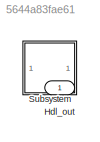
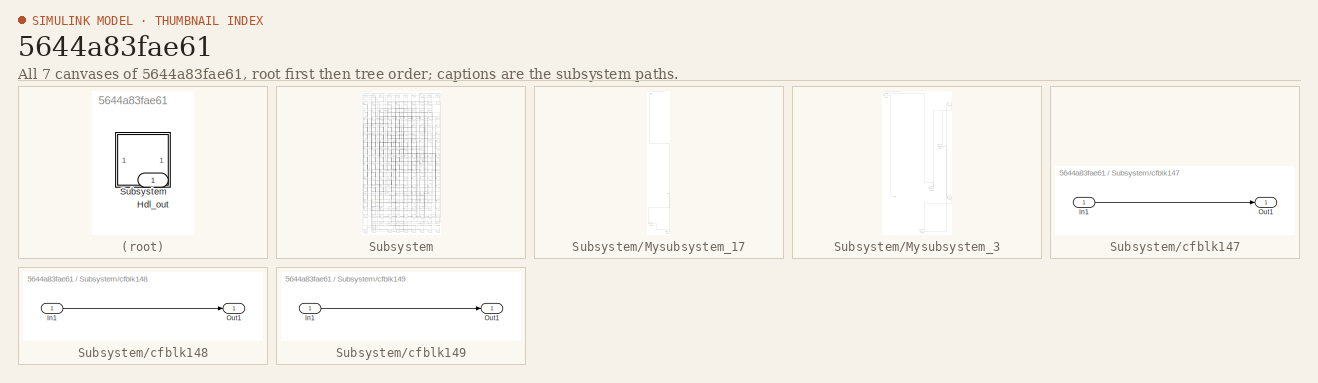
[diagram: thumbnail index - all 7 canvases of the model, root first then tree order]
MODEL slx_5644a83fae61
KIND model
CONFIG AbsTol = auto
CONFIG EnableMultiTasking = off
CONFIG FixedStep = auto
CONFIG MaxStep = auto
CONFIG MinStep = auto
CONFIG RelTol = 1e-3
CONFIG SampleTimeConstraint = Unconstrained
CONFIG SolverName = VariableStepAuto
CONFIG StartTime = 0.0
CONFIG StopTime = 10.0
BLOCK [Outport] Hdl_out
  OutDataTypeStr = uint8
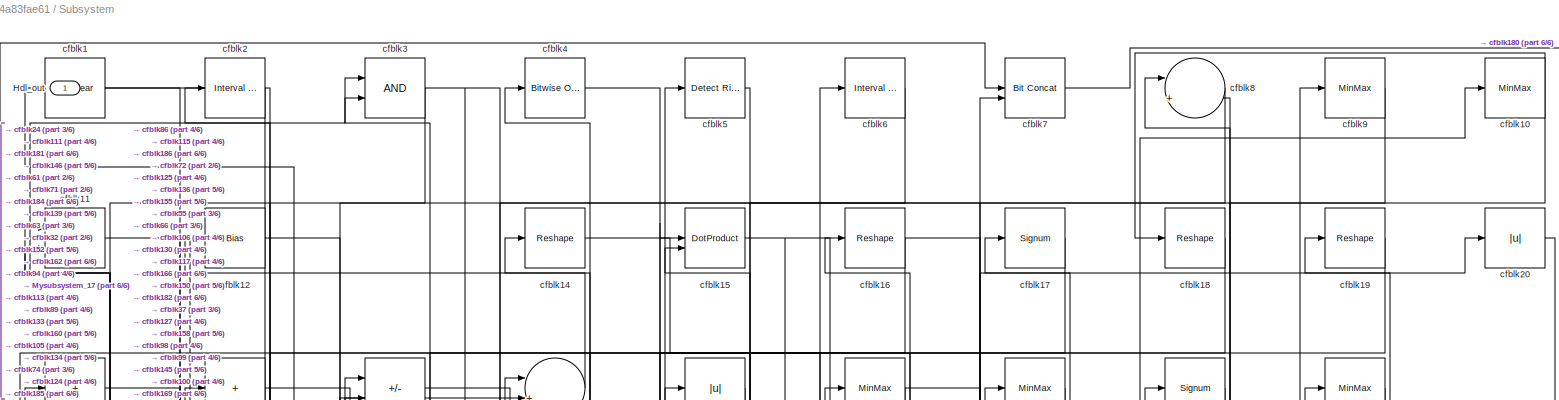
[diagram: Subsystem - part 1/6, full width, top band]
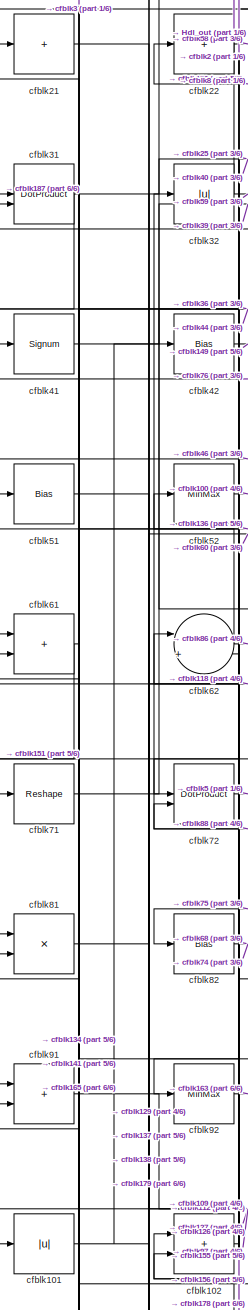
[diagram: Subsystem - part 2/6, middle left region]
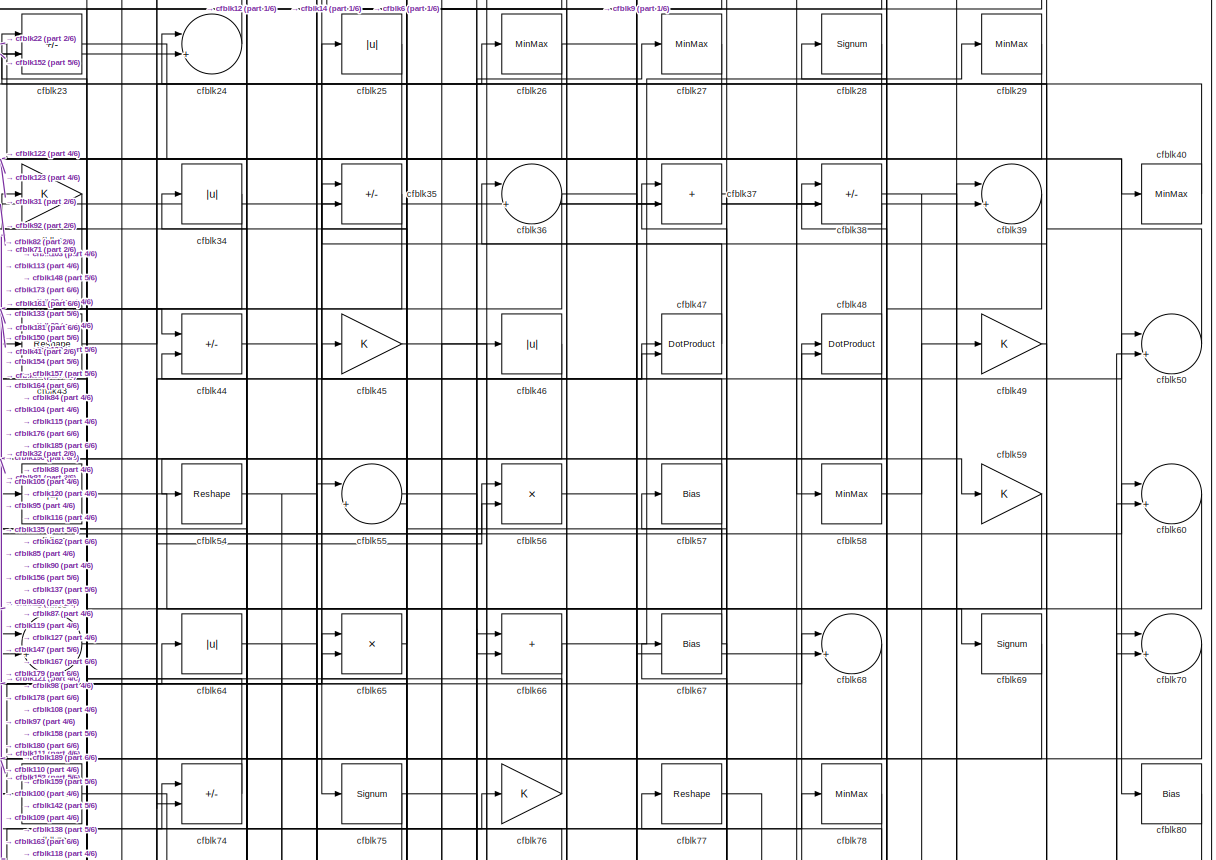
[diagram: Subsystem - part 3/6, full width, top band]
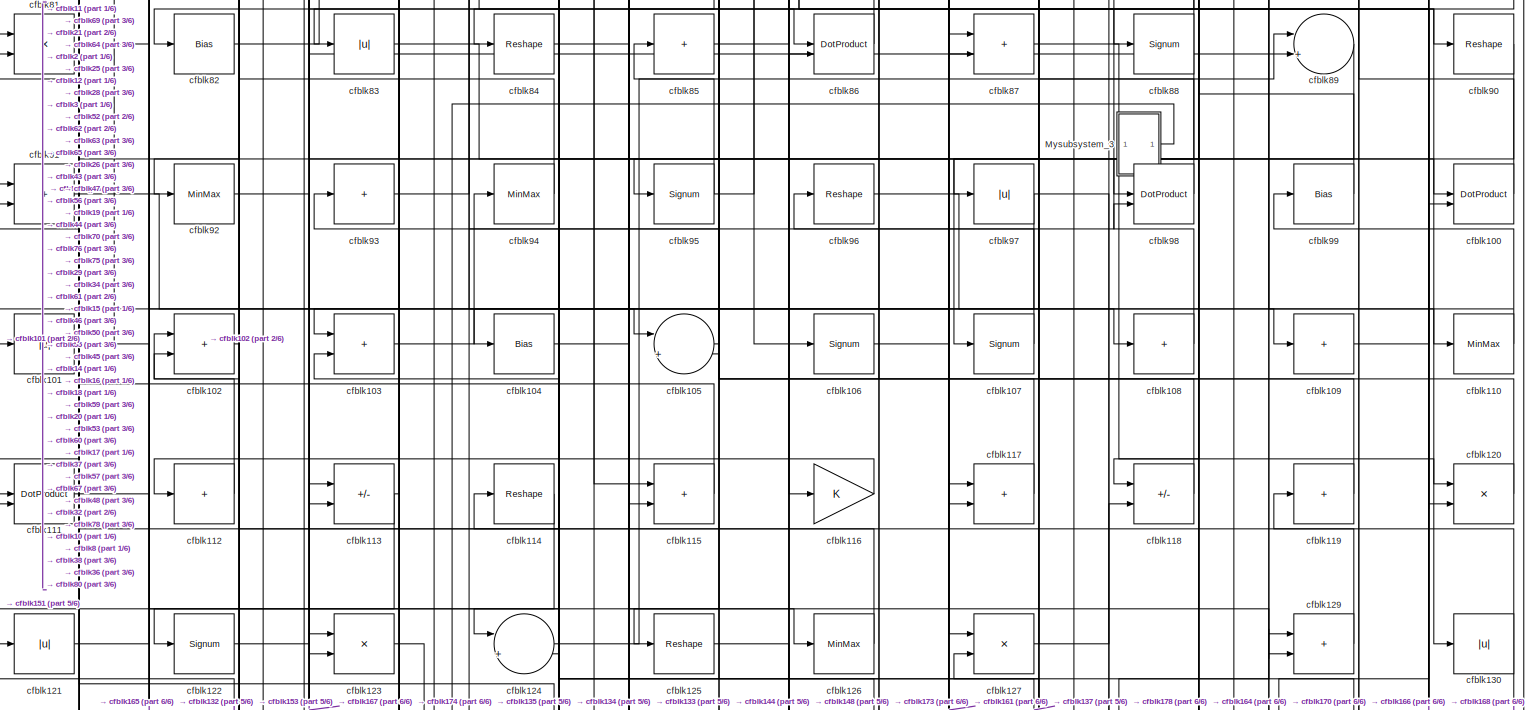
[diagram: Subsystem - part 4/6, full width, middle band]
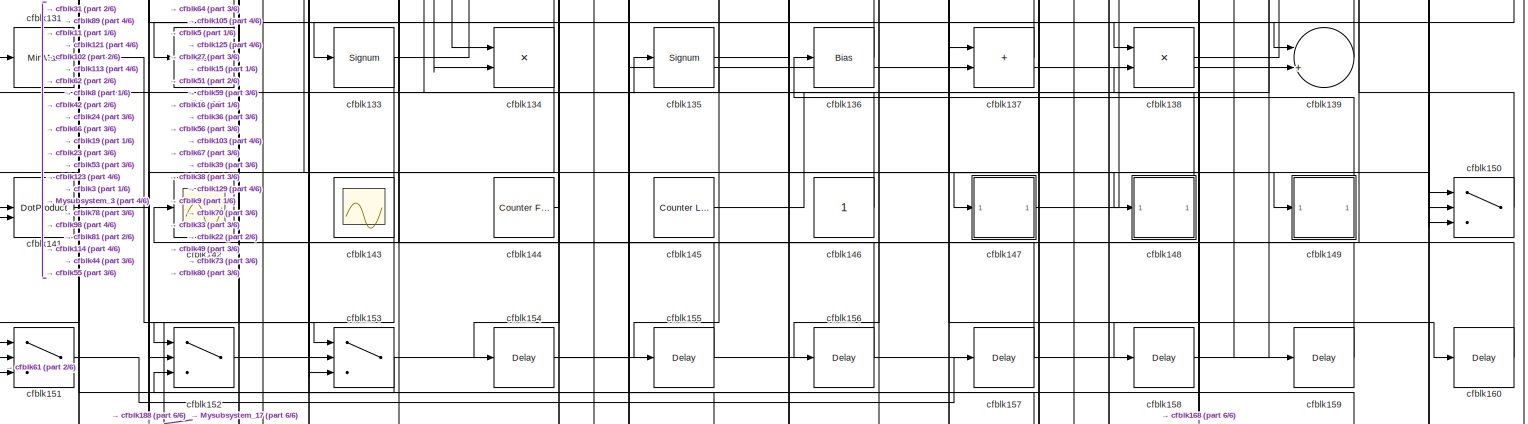
[diagram: Subsystem - part 5/6, full width, bottom band]
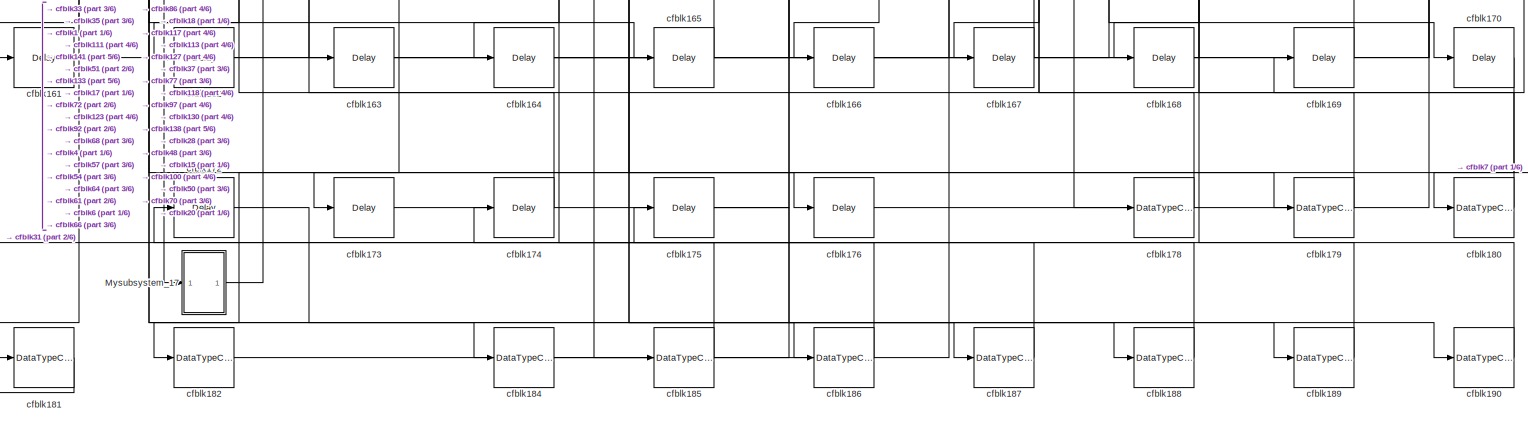
[diagram: Subsystem - part 6/6, full width, bottom band]
BLOCK [SubSystem] Subsystem
BLOCK [Outport] Subsystem/Hdl_out
  OutDataTypeStr = uint8
BLOCK [SubSystem] Subsystem/Mysubsystem_17
  RTWFcnName = Mysubsystem_17
  RTWFcnNameOpts = User specified
  RTWFileNameOpts = Use function name
  RTWSystemCode = Reusable function
  TreatAsAtomicUnit = on
BLOCK [Inport] Subsystem/Mysubsystem_17/In1
BLOCK [Outport] Subsystem/Mysubsystem_17/Out1
BLOCK [Delay] Subsystem/Mysubsystem_17/cfblk171
  InputPortMap = u0
  SampleTime = 1
BLOCK [DataTypeConversion] Subsystem/Mysubsystem_17/cfblk183
  OutDataTypeStr = boolean
  RndMeth = Floor
  SaturateOnIntegerOverflow = off
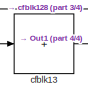
[diagram: Subsystem/Mysubsystem_3 - part 1/4, top left region]
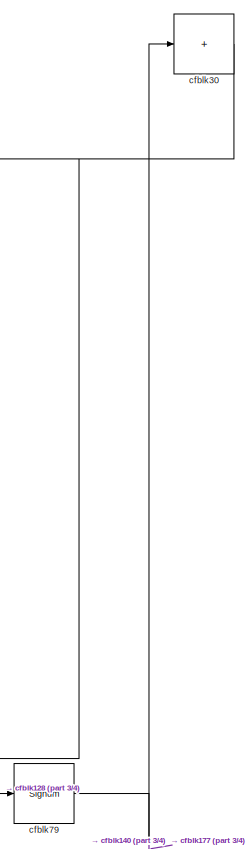
[diagram: Subsystem/Mysubsystem_3 - part 2/4, top right region]
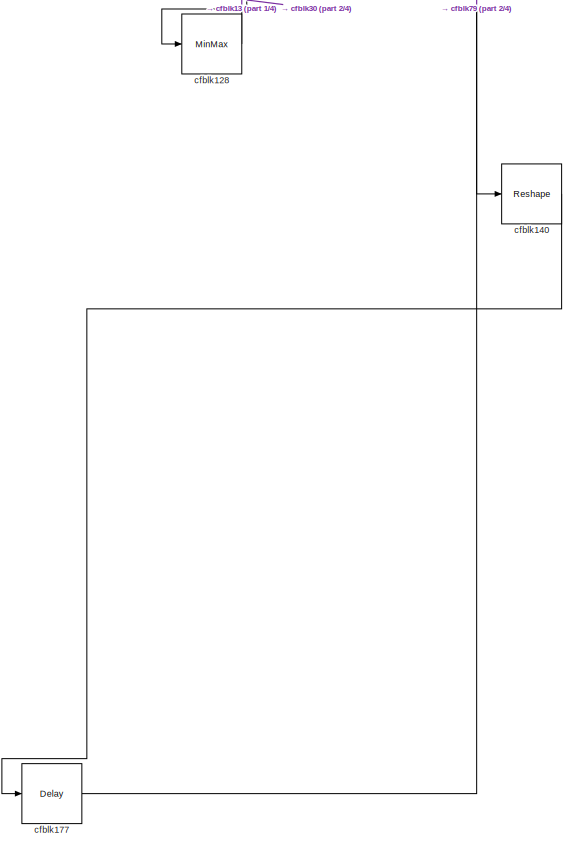
[diagram: Subsystem/Mysubsystem_3 - part 3/4, bottom right region]
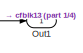
[diagram: Subsystem/Mysubsystem_3 - part 4/4, bottom left region]
BLOCK [SubSystem] Subsystem/Mysubsystem_3
  RTWFcnName = Mysubsystem_3
  RTWFcnNameOpts = User specified
  RTWFileNameOpts = Use function name
  RTWSystemCode = Reusable function
  TreatAsAtomicUnit = on
BLOCK [Outport] Subsystem/Mysubsystem_3/Out1
BLOCK [MinMax] Subsystem/Mysubsystem_3/cfblk128
BLOCK [Sum] Subsystem/Mysubsystem_3/cfblk13
  IconShape = rectangular
  Inputs = +
BLOCK [Reshape] Subsystem/Mysubsystem_3/cfblk140
BLOCK [Delay] Subsystem/Mysubsystem_3/cfblk177
  InputPortMap = u0
  SampleTime = 1
BLOCK [Sum] Subsystem/Mysubsystem_3/cfblk30
  IconShape = rectangular
  Inputs = +
BLOCK [Signum] Subsystem/Mysubsystem_3/cfblk79
BLOCK [Reference] Subsystem/cfblk1  REF=simulink/Logic and Bit
Operations/Bit Clear
  LibrarySourceBlock = hdlsllib/Logic and Bit\nOperations/Bit Clear
  SourceBlock = simulink/Logic and Bit\nOperations/Bit Clear
  SourceType = Bit Clear
BLOCK [MinMax] Subsystem/cfblk10
  OutDataTypeStr = uint8
BLOCK [DotProduct] Subsystem/cfblk100
  OutDataTypeStr = uint8
BLOCK [Abs] Subsystem/cfblk101
  OutDataTypeStr = uint8
  SaturateOnIntegerOverflow = off
BLOCK [Sum] Subsystem/cfblk102
  IconShape = rectangular
  OutDataTypeStr = uint8
BLOCK [Sum] Subsystem/cfblk103
  IconShape = rectangular
  OutDataTypeStr = uint8
BLOCK [Bias] Subsystem/cfblk104
  Bias = 0.0
  SaturateOnIntegerOverflow = off
BLOCK [Sum] Subsystem/cfblk105
  Inputs = |++
  OutDataTypeStr = uint8
BLOCK [Signum] Subsystem/cfblk106
BLOCK [Signum] Subsystem/cfblk107
BLOCK [Sum] Subsystem/cfblk108
  IconShape = rectangular
  Inputs = +
  OutDataTypeStr = uint8
BLOCK [Sum] Subsystem/cfblk109
  IconShape = rectangular
  Inputs = +
  OutDataTypeStr = uint8
BLOCK [Sum] Subsystem/cfblk11
  IconShape = rectangular
  OutDataTypeStr = uint8
BLOCK [MinMax] Subsystem/cfblk110
  OutDataTypeStr = uint8
BLOCK [DotProduct] Subsystem/cfblk111
  OutDataTypeStr = uint8
BLOCK [Sum] Subsystem/cfblk112
  IconShape = rectangular
  Inputs = +
  OutDataTypeStr = uint8
BLOCK [Sum] Subsystem/cfblk113
  IconShape = rectangular
  Inputs = +-
  OutDataTypeStr = uint8
BLOCK [Reshape] Subsystem/cfblk114
BLOCK [Sum] Subsystem/cfblk115
  IconShape = rectangular
  OutDataTypeStr = uint8
BLOCK [Gain] Subsystem/cfblk116
  OutDataTypeStr = uint8
BLOCK [Sum] Subsystem/cfblk117
  IconShape = rectangular
  OutDataTypeStr = uint8
BLOCK [Sum] Subsystem/cfblk118
  IconShape = rectangular
  Inputs = +-
  OutDataTypeStr = uint8
BLOCK [Sum] Subsystem/cfblk119
  IconShape = rectangular
  Inputs = +
  OutDataTypeStr = uint8
BLOCK [Bias] Subsystem/cfblk12
  Bias = 0.0
  SaturateOnIntegerOverflow = off
BLOCK [Product] Subsystem/cfblk120
  Inputs = */
  OutDataTypeStr = uint8
  RndMeth = Zero
  SaturateOnIntegerOverflow = on
BLOCK [Abs] Subsystem/cfblk121
  OutDataTypeStr = uint8
  SaturateOnIntegerOverflow = off
BLOCK [Signum] Subsystem/cfblk122
BLOCK [Product] Subsystem/cfblk123
  Inputs = */
  OutDataTypeStr = uint8
  RndMeth = Zero
  SaturateOnIntegerOverflow = on
BLOCK [Sum] Subsystem/cfblk124
  Inputs = |++
  OutDataTypeStr = uint8
BLOCK [Reshape] Subsystem/cfblk125
BLOCK [MinMax] Subsystem/cfblk126
  OutDataTypeStr = uint8
BLOCK [Product] Subsystem/cfblk127
  Inputs = */
  OutDataTypeStr = uint8
  RndMeth = Zero
  SaturateOnIntegerOverflow = on
BLOCK [Sum] Subsystem/cfblk129
  IconShape = rectangular
  OutDataTypeStr = uint8
BLOCK [Abs] Subsystem/cfblk130
  OutDataTypeStr = uint8
  SaturateOnIntegerOverflow = off
BLOCK [MinMax] Subsystem/cfblk131
  OutDataTypeStr = uint8
BLOCK [Bias] Subsystem/cfblk132
  Bias = 0.0
  SaturateOnIntegerOverflow = off
BLOCK [Signum] Subsystem/cfblk133
BLOCK [Product] Subsystem/cfblk134
  Inputs = */
  OutDataTypeStr = uint8
  RndMeth = Zero
  SaturateOnIntegerOverflow = on
BLOCK [Signum] Subsystem/cfblk135
BLOCK [Bias] Subsystem/cfblk136
  Bias = 0.0
  SaturateOnIntegerOverflow = off
BLOCK [Sum] Subsystem/cfblk137
  IconShape = rectangular
  OutDataTypeStr = uint8
BLOCK [Product] Subsystem/cfblk138
  Inputs = */
  OutDataTypeStr = uint8
  RndMeth = Zero
  SaturateOnIntegerOverflow = on
BLOCK [Sum] Subsystem/cfblk139
  Inputs = |++
  OutDataTypeStr = uint8
BLOCK [Reshape] Subsystem/cfblk14
BLOCK [DotProduct] Subsystem/cfblk141
  OutDataTypeStr = uint8
BLOCK [Scope] Subsystem/cfblk142
  Floating = off
  NumInputPorts = 1
  ScopeSpecificationString = Simulink.scopes.TimeScopeBlockCfg('CurrentConfiguration', extmgr.ConfigurationSet(extmgr.Configuration('Core','General UI',true),extmgr.Configuration('Core','Source UI',true),extmgr.Configuration('Sources','WiredSimulink',true,'DataLoggingVariableName','ScopeData1','DataLoggingSaveFormat','Array','DataLoggingLimitDataPoints',true,'DataLoggingDecimation','1'),extmgr.Configuration('Visuals','Time Do...<+868ch>
BLOCK [Scope] Subsystem/cfblk143
  Floating = on
  NumInputPorts = 1
  ScopeSpecificationString = Simulink.scopes.TimeScopeBlockCfg('CurrentConfiguration', extmgr.ConfigurationSet(extmgr.Configuration('Core','General UI',true,'FigureColor',[0.156862745098039 0.156862745098039 0.156862745098039]),extmgr.Configuration('Core','Source UI',true),extmgr.Configuration('Sources','WiredSimulink',true,'DataLoggingSaveFormat','StructureWithTime','DataLoggingLimitDataPoints',true,'DataLoggingDecimation','...<+2674ch>
BLOCK [Reference] Subsystem/cfblk144  REF=hdlsllib/Sources/Counter
Free-Running
  SourceBlock = hdlsllib/Sources/Counter\nFree-Running
  SourceType = Counter Free-Running
BLOCK [Reference] Subsystem/cfblk145  REF=hdlsllib/Sources/Counter
Limited
  SourceBlock = hdlsllib/Sources/Counter\nLimited
  SourceType = Counter Limited
BLOCK [Constant] Subsystem/cfblk146
  OutDataTypeStr = uint8
  SampleTime = -1
BLOCK [SubSystem] Subsystem/cfblk147
  LibrarySourceBlock = hdlsllib/Ports &\nSubsystems/Subsystem
BLOCK [Inport] Subsystem/cfblk147/In1
BLOCK [Outport] Subsystem/cfblk147/Out1
BLOCK [SubSystem] Subsystem/cfblk148
  LibrarySourceBlock = hdlsllib/Ports &\nSubsystems/Subsystem
BLOCK [Inport] Subsystem/cfblk148/In1
BLOCK [Outport] Subsystem/cfblk148/Out1
BLOCK [SubSystem] Subsystem/cfblk149
  LibrarySourceBlock = hdlsllib/Ports &\nSubsystems/Subsystem
BLOCK [Inport] Subsystem/cfblk149/In1
BLOCK [Outport] Subsystem/cfblk149/Out1
BLOCK [DotProduct] Subsystem/cfblk15
  OutDataTypeStr = uint8
BLOCK [Switch] Subsystem/cfblk150
  InputSameDT = off
  OutDataTypeStr = uint8
  SaturateOnIntegerOverflow = off
BLOCK [Switch] Subsystem/cfblk151
  InputSameDT = off
  OutDataTypeStr = uint8
  SaturateOnIntegerOverflow = off
BLOCK [Switch] Subsystem/cfblk152
  InputSameDT = off
  OutDataTypeStr = uint8
  SaturateOnIntegerOverflow = off
BLOCK [Switch] Subsystem/cfblk153
  InputSameDT = off
  OutDataTypeStr = uint8
  SaturateOnIntegerOverflow = off
BLOCK [Delay] Subsystem/cfblk154
  InputPortMap = u0
  SampleTime = 1
BLOCK [Delay] Subsystem/cfblk155
  InputPortMap = u0
  SampleTime = 1
BLOCK [Delay] Subsystem/cfblk156
  InputPortMap = u0
  SampleTime = 1
BLOCK [Delay] Subsystem/cfblk157
  InputPortMap = u0
  SampleTime = 1
BLOCK [Delay] Subsystem/cfblk158
  InputPortMap = u0
  SampleTime = 1
BLOCK [Delay] Subsystem/cfblk159
  InputPortMap = u0
  SampleTime = 1
BLOCK [Reshape] Subsystem/cfblk16
BLOCK [Delay] Subsystem/cfblk160
  InputPortMap = u0
  SampleTime = 1
BLOCK [Delay] Subsystem/cfblk161
  InputPortMap = u0
  SampleTime = 1
BLOCK [Delay] Subsystem/cfblk162
  InputPortMap = u0
  SampleTime = 1
BLOCK [Delay] Subsystem/cfblk163
  InputPortMap = u0
  SampleTime = 1
BLOCK [Delay] Subsystem/cfblk164
  InputPortMap = u0
  SampleTime = 1
BLOCK [Delay] Subsystem/cfblk165
  InputPortMap = u0
  SampleTime = 1
BLOCK [Delay] Subsystem/cfblk166
  InputPortMap = u0
  SampleTime = 1
BLOCK [Delay] Subsystem/cfblk167
  InputPortMap = u0
  SampleTime = 1
BLOCK [Delay] Subsystem/cfblk168
  InputPortMap = u0
  SampleTime = 1
BLOCK [Delay] Subsystem/cfblk169
  InputPortMap = u0
  SampleTime = 1
BLOCK [Signum] Subsystem/cfblk17
BLOCK [Delay] Subsystem/cfblk170
  InputPortMap = u0
  SampleTime = 1
BLOCK [Delay] Subsystem/cfblk172
  InputPortMap = u0
  SampleTime = 1
BLOCK [Delay] Subsystem/cfblk173
  InputPortMap = u0
  SampleTime = 1
BLOCK [Delay] Subsystem/cfblk174
  InputPortMap = u0
  SampleTime = 1
BLOCK [Delay] Subsystem/cfblk175
  InputPortMap = u0
  SampleTime = 1
BLOCK [Delay] Subsystem/cfblk176
  InputPortMap = u0
  SampleTime = 1
BLOCK [DataTypeConversion] Subsystem/cfblk178
  OutDataTypeStr = uint8
  RndMeth = Floor
  SaturateOnIntegerOverflow = off
BLOCK [DataTypeConversion] Subsystem/cfblk179
  OutDataTypeStr = uint8
  RndMeth = Floor
  SaturateOnIntegerOverflow = off
BLOCK [Reshape] Subsystem/cfblk18
BLOCK [DataTypeConversion] Subsystem/cfblk180
  OutDataTypeStr = uint8
  RndMeth = Floor
  SaturateOnIntegerOverflow = off
BLOCK [DataTypeConversion] Subsystem/cfblk181
  OutDataTypeStr = uint8
  RndMeth = Floor
  SaturateOnIntegerOverflow = off
BLOCK [DataTypeConversion] Subsystem/cfblk182
  OutDataTypeStr = uint8
  RndMeth = Floor
  SaturateOnIntegerOverflow = off
BLOCK [DataTypeConversion] Subsystem/cfblk184
  OutDataTypeStr = uint8
  RndMeth = Floor
  SaturateOnIntegerOverflow = off
BLOCK [DataTypeConversion] Subsystem/cfblk185
  OutDataTypeStr = uint8
  RndMeth = Floor
  SaturateOnIntegerOverflow = off
BLOCK [DataTypeConversion] Subsystem/cfblk186
  OutDataTypeStr = uint8
  RndMeth = Floor
  SaturateOnIntegerOverflow = off
BLOCK [DataTypeConversion] Subsystem/cfblk187
  OutDataTypeStr = uint8
  RndMeth = Floor
  SaturateOnIntegerOverflow = off
BLOCK [DataTypeConversion] Subsystem/cfblk188
  OutDataTypeStr = uint8
  RndMeth = Floor
  SaturateOnIntegerOverflow = off
BLOCK [DataTypeConversion] Subsystem/cfblk189
  OutDataTypeStr = uint8
  RndMeth = Floor
  SaturateOnIntegerOverflow = off
BLOCK [Reshape] Subsystem/cfblk19
BLOCK [DataTypeConversion] Subsystem/cfblk190
  OutDataTypeStr = uint8
  RndMeth = Floor
  SaturateOnIntegerOverflow = off
BLOCK [Reference] Subsystem/cfblk2  REF=hdlsllib/Logic and Bit
Operations/Interval Test
  SourceBlock = hdlsllib/Logic and Bit\nOperations/Interval Test
  SourceType = Interval Test
BLOCK [Abs] Subsystem/cfblk20
  OutDataTypeStr = uint8
  SaturateOnIntegerOverflow = off
BLOCK [Sum] Subsystem/cfblk21
  IconShape = rectangular
  Inputs = +
  OutDataTypeStr = uint8
BLOCK [Sum] Subsystem/cfblk22
  IconShape = rectangular
  Inputs = +
  OutDataTypeStr = uint8
BLOCK [Sum] Subsystem/cfblk23
  IconShape = rectangular
  Inputs = +-
  OutDataTypeStr = uint8
BLOCK [Sum] Subsystem/cfblk24
  Inputs = |++
  OutDataTypeStr = uint8
BLOCK [Abs] Subsystem/cfblk25
  OutDataTypeStr = uint8
  SaturateOnIntegerOverflow = off
BLOCK [MinMax] Subsystem/cfblk26
  OutDataTypeStr = uint8
BLOCK [MinMax] Subsystem/cfblk27
  OutDataTypeStr = uint8
BLOCK [Signum] Subsystem/cfblk28
BLOCK [MinMax] Subsystem/cfblk29
  OutDataTypeStr = uint8
BLOCK [Logic] Subsystem/cfblk3
  AllPortsSameDT = off
  OutDataTypeStr = boolean
BLOCK [DotProduct] Subsystem/cfblk31
  OutDataTypeStr = uint8
BLOCK [Abs] Subsystem/cfblk32
  OutDataTypeStr = uint8
  SaturateOnIntegerOverflow = off
BLOCK [Gain] Subsystem/cfblk33
  OutDataTypeStr = uint8
BLOCK [Abs] Subsystem/cfblk34
  OutDataTypeStr = uint8
  SaturateOnIntegerOverflow = off
BLOCK [Sum] Subsystem/cfblk35
  IconShape = rectangular
  Inputs = +-
  OutDataTypeStr = uint8
BLOCK [Sum] Subsystem/cfblk36
  Inputs = |++
  OutDataTypeStr = uint8
BLOCK [Sum] Subsystem/cfblk37
  IconShape = rectangular
  OutDataTypeStr = uint8
BLOCK [Sum] Subsystem/cfblk38
  IconShape = rectangular
  Inputs = +-
  OutDataTypeStr = uint8
BLOCK [Sum] Subsystem/cfblk39
  Inputs = |++
  OutDataTypeStr = uint8
BLOCK [Reference] Subsystem/cfblk4  REF=simulink/Logic and Bit
Operations/Bitwise
Operator
  LibrarySourceBlock = hdlsllib/Logic and Bit\nOperations/Bitwise\nOperator
  SourceBlock = simulink/Logic and Bit\nOperations/Bitwise\nOperator
  SourceType = Bitwise Operator
BLOCK [MinMax] Subsystem/cfblk40
  OutDataTypeStr = uint8
BLOCK [Signum] Subsystem/cfblk41
BLOCK [Bias] Subsystem/cfblk42
  Bias = 0.0
  SaturateOnIntegerOverflow = off
BLOCK [Reshape] Subsystem/cfblk43
BLOCK [Sum] Subsystem/cfblk44
  IconShape = rectangular
  Inputs = +-
  OutDataTypeStr = uint8
BLOCK [Gain] Subsystem/cfblk45
  OutDataTypeStr = uint8
BLOCK [Abs] Subsystem/cfblk46
  OutDataTypeStr = uint8
  SaturateOnIntegerOverflow = off
BLOCK [DotProduct] Subsystem/cfblk47
  OutDataTypeStr = uint8
BLOCK [DotProduct] Subsystem/cfblk48
  OutDataTypeStr = uint8
BLOCK [Gain] Subsystem/cfblk49
  OutDataTypeStr = uint8
BLOCK [Reference] Subsystem/cfblk5  REF=hdlsllib/Logic and Bit
Operations/Detect Rise
Nonnegative
  SourceBlock = hdlsllib/Logic and Bit\nOperations/Detect Rise\nNonnegative
  SourceType = Detect Rise Nonnegative
BLOCK [Sum] Subsystem/cfblk50
  Inputs = |++
  OutDataTypeStr = uint8
BLOCK [Bias] Subsystem/cfblk51
  Bias = 0.0
  SaturateOnIntegerOverflow = off
BLOCK [MinMax] Subsystem/cfblk52
  OutDataTypeStr = uint8
BLOCK [Abs] Subsystem/cfblk53
  OutDataTypeStr = uint8
  SaturateOnIntegerOverflow = off
BLOCK [Reshape] Subsystem/cfblk54
BLOCK [Sum] Subsystem/cfblk55
  Inputs = |++
  OutDataTypeStr = uint8
BLOCK [Product] Subsystem/cfblk56
  Inputs = */
  OutDataTypeStr = uint8
  RndMeth = Zero
  SaturateOnIntegerOverflow = on
BLOCK [Bias] Subsystem/cfblk57
  Bias = 0.0
  SaturateOnIntegerOverflow = off
BLOCK [MinMax] Subsystem/cfblk58
  OutDataTypeStr = uint8
BLOCK [Gain] Subsystem/cfblk59
  OutDataTypeStr = uint8
BLOCK [Reference] Subsystem/cfblk6  REF=hdlsllib/Logic and Bit
Operations/Interval Test
  SourceBlock = hdlsllib/Logic and Bit\nOperations/Interval Test
  SourceType = Interval Test
BLOCK [Sum] Subsystem/cfblk60
  Inputs = |++
  OutDataTypeStr = uint8
BLOCK [Sum] Subsystem/cfblk61
  IconShape = rectangular
  OutDataTypeStr = uint8
BLOCK [Sum] Subsystem/cfblk62
  Inputs = |++
  OutDataTypeStr = uint8
BLOCK [Sum] Subsystem/cfblk63
  Inputs = |++
  OutDataTypeStr = uint8
BLOCK [Abs] Subsystem/cfblk64
  OutDataTypeStr = uint8
  SaturateOnIntegerOverflow = off
BLOCK [Product] Subsystem/cfblk65
  Inputs = */
  OutDataTypeStr = uint8
  RndMeth = Zero
  SaturateOnIntegerOverflow = on
BLOCK [Sum] Subsystem/cfblk66
  IconShape = rectangular
  OutDataTypeStr = uint8
BLOCK [Bias] Subsystem/cfblk67
  Bias = 0.0
  SaturateOnIntegerOverflow = off
BLOCK [Sum] Subsystem/cfblk68
  Inputs = |++
  OutDataTypeStr = uint8
BLOCK [Signum] Subsystem/cfblk69
BLOCK [Reference] Subsystem/cfblk7  REF=hdlsllib/Logic and Bit
Operations/Bit Concat
  SourceBlock = hdlsllib/Logic and Bit\nOperations/Bit Concat
  SourceType = Bit Concat
BLOCK [Sum] Subsystem/cfblk70
  Inputs = |++
  OutDataTypeStr = uint8
BLOCK [Reshape] Subsystem/cfblk71
BLOCK [DotProduct] Subsystem/cfblk72
  OutDataTypeStr = uint8
BLOCK [MinMax] Subsystem/cfblk73
  OutDataTypeStr = uint8
BLOCK [Sum] Subsystem/cfblk74
  IconShape = rectangular
  Inputs = +-
  OutDataTypeStr = uint8
BLOCK [Signum] Subsystem/cfblk75
BLOCK [Gain] Subsystem/cfblk76
  OutDataTypeStr = uint8
BLOCK [Reshape] Subsystem/cfblk77
BLOCK [MinMax] Subsystem/cfblk78
  OutDataTypeStr = uint8
BLOCK [Sum] Subsystem/cfblk8
  Inputs = |++
  OutDataTypeStr = uint8
BLOCK [Bias] Subsystem/cfblk80
  Bias = 0.0
  SaturateOnIntegerOverflow = off
BLOCK [Product] Subsystem/cfblk81
  Inputs = */
  OutDataTypeStr = uint8
  RndMeth = Zero
  SaturateOnIntegerOverflow = on
BLOCK [Bias] Subsystem/cfblk82
  Bias = 0.0
  SaturateOnIntegerOverflow = off
BLOCK [Abs] Subsystem/cfblk83
  OutDataTypeStr = uint8
  SaturateOnIntegerOverflow = off
BLOCK [Reshape] Subsystem/cfblk84
BLOCK [Sum] Subsystem/cfblk85
  IconShape = rectangular
  Inputs = +
  OutDataTypeStr = uint8
BLOCK [DotProduct] Subsystem/cfblk86
  OutDataTypeStr = uint8
BLOCK [Sum] Subsystem/cfblk87
  IconShape = rectangular
  OutDataTypeStr = uint8
BLOCK [Signum] Subsystem/cfblk88
BLOCK [Sum] Subsystem/cfblk89
  Inputs = |++
  OutDataTypeStr = uint8
BLOCK [MinMax] Subsystem/cfblk9
  OutDataTypeStr = uint8
BLOCK [Reshape] Subsystem/cfblk90
BLOCK [Sum] Subsystem/cfblk91
  IconShape = rectangular
  OutDataTypeStr = uint8
BLOCK [MinMax] Subsystem/cfblk92
  OutDataTypeStr = uint8
BLOCK [Sum] Subsystem/cfblk93
  IconShape = rectangular
  Inputs = +
  OutDataTypeStr = uint8
BLOCK [MinMax] Subsystem/cfblk94
  OutDataTypeStr = uint8
BLOCK [Signum] Subsystem/cfblk95
BLOCK [Reshape] Subsystem/cfblk96
BLOCK [Abs] Subsystem/cfblk97
  OutDataTypeStr = uint8
  SaturateOnIntegerOverflow = off
BLOCK [DotProduct] Subsystem/cfblk98
  OutDataTypeStr = uint8
BLOCK [Bias] Subsystem/cfblk99
  Bias = 0.0
  SaturateOnIntegerOverflow = off
LINE Subsystem/Mysubsystem_17/In1:1 -> Subsystem/Mysubsystem_17/cfblk171:1
LINE Subsystem/Mysubsystem_17/cfblk171:1 -> Subsystem/Mysubsystem_17/cfblk183:1
LINE Subsystem/Mysubsystem_17/cfblk183:1 -> Subsystem/Mysubsystem_17/Out1:1
LINE Subsystem/Mysubsystem_17:1 -> Subsystem/cfblk1:1
LINE Subsystem/Mysubsystem_3/cfblk128:1 -> Subsystem/Mysubsystem_3/cfblk13:1
LINE Subsystem/Mysubsystem_3/cfblk13:1 -> Subsystem/Mysubsystem_3/Out1:1
LINE Subsystem/Mysubsystem_3/cfblk140:1 -> Subsystem/Mysubsystem_3/cfblk177:1
LINE Subsystem/Mysubsystem_3/cfblk177:1 -> Subsystem/Mysubsystem_3/cfblk30:1
NET Subsystem/Mysubsystem_3/cfblk30:1 -> Subsystem/Mysubsystem_3/cfblk128:1, Subsystem/Mysubsystem_3/cfblk79:1
LINE Subsystem/Mysubsystem_3/cfblk79:1 -> Subsystem/Mysubsystem_3/cfblk140:1
LINE Subsystem/Mysubsystem_3:1 -> Subsystem/cfblk134:1
NET Subsystem/cfblk100:1 -> Subsystem/cfblk19:1, Subsystem/cfblk36:1
NET Subsystem/cfblk101:1 -> Subsystem/cfblk129:2, Subsystem/cfblk42:1
LINE Subsystem/cfblk102:1 -> Subsystem/cfblk62:1
LINE Subsystem/cfblk103:1 -> Subsystem/cfblk94:1
LINE Subsystem/cfblk104:1 -> Subsystem/cfblk76:1
LINE Subsystem/cfblk105:1 -> Subsystem/cfblk65:2
LINE Subsystem/cfblk106:1 -> Subsystem/cfblk20:1
LINE Subsystem/cfblk107:1 -> Subsystem/cfblk96:1
LINE Subsystem/cfblk108:1 -> Subsystem/cfblk48:1
LINE Subsystem/cfblk109:1 -> Subsystem/cfblk60:2
NET Subsystem/cfblk10:1 -> Subsystem/cfblk18:1, Subsystem/cfblk98:1
NET Subsystem/cfblk110:1 -> Subsystem/cfblk104:1, Subsystem/cfblk99:1
LINE Subsystem/cfblk111:1 -> Subsystem/cfblk165:1
LINE Subsystem/cfblk112:1 -> Subsystem/cfblk102:1
NET Subsystem/cfblk113:1 -> Subsystem/cfblk132:1, Subsystem/cfblk43:1
NET Subsystem/cfblk114:1 -> Subsystem/cfblk151:2, Subsystem/cfblk153:2
LINE Subsystem/cfblk115:1 -> Subsystem/cfblk11:1
LINE Subsystem/cfblk116:1 -> Subsystem/cfblk112:1
NET Subsystem/cfblk117:1 -> Subsystem/cfblk16:1, Subsystem/cfblk93:1
LINE Subsystem/cfblk118:1 -> Subsystem/cfblk61:1
LINE Subsystem/cfblk119:1 -> Subsystem/cfblk67:1
NET Subsystem/cfblk11:1 -> Subsystem/cfblk139:1, Subsystem/cfblk63:1
LINE Subsystem/cfblk120:1 -> Subsystem/cfblk34:1
LINE Subsystem/cfblk121:1 -> Subsystem/cfblk64:1
NET Subsystem/cfblk122:1 -> Subsystem/cfblk63:2, Subsystem/cfblk65:1
LINE Subsystem/cfblk123:1 -> Subsystem/cfblk135:1
LINE Subsystem/cfblk124:1 -> Subsystem/cfblk89:1
LINE Subsystem/cfblk125:1 -> Subsystem/cfblk148:1
LINE Subsystem/cfblk126:1 -> Subsystem/cfblk52:1
NET Subsystem/cfblk127:1 -> Subsystem/cfblk10:1, Subsystem/cfblk17:1, Subsystem/cfblk57:1
LINE Subsystem/cfblk129:1 -> Subsystem/cfblk91:1
LINE Subsystem/cfblk12:1 -> Subsystem/cfblk89:2
NET Subsystem/cfblk130:1 -> Subsystem/cfblk119:1, Subsystem/cfblk168:1
LINE Subsystem/cfblk131:1 -> Subsystem/cfblk153:1
LINE Subsystem/cfblk132:1 -> Subsystem/cfblk121:1
NET Subsystem/cfblk133:1 -> Subsystem/Mysubsystem_17:1, Subsystem/cfblk78:1, Subsystem/cfblk98:2
NET Subsystem/cfblk134:1 -> Subsystem/cfblk152:2, Subsystem/cfblk81:1
LINE Subsystem/cfblk135:1 -> Subsystem/cfblk27:1
NET Subsystem/cfblk136:1 -> Subsystem/cfblk15:2, Subsystem/cfblk51:1
LINE Subsystem/cfblk137:1 -> Subsystem/cfblk103:2
LINE Subsystem/cfblk138:1 -> Subsystem/cfblk70:2
LINE Subsystem/cfblk139:1 -> Subsystem/cfblk33:1
LINE Subsystem/cfblk141:1 -> Subsystem/cfblk188:1
LINE Subsystem/cfblk144:1 -> Subsystem/cfblk114:1
LINE Subsystem/cfblk145:1 -> Subsystem/cfblk9:1
NET Subsystem/cfblk146:1 -> Subsystem/cfblk11:2, Subsystem/cfblk131:1
LINE Subsystem/cfblk147/In1:1 -> Subsystem/cfblk147/Out1:1
LINE Subsystem/cfblk147:1 -> Subsystem/cfblk39:1
LINE Subsystem/cfblk148/In1:1 -> Subsystem/cfblk148/Out1:1
NET Subsystem/cfblk148:1 -> Subsystem/cfblk105:2, Subsystem/cfblk53:1
LINE Subsystem/cfblk149/In1:1 -> Subsystem/cfblk149/Out1:1
LINE Subsystem/cfblk149:1 -> Subsystem/cfblk136:1
LINE Subsystem/cfblk14:1 -> Subsystem/cfblk66:2
LINE Subsystem/cfblk150:1 -> Subsystem/cfblk22:1
LINE Subsystem/cfblk151:1 -> Subsystem/cfblk157:1
LINE Subsystem/cfblk152:1 -> Subsystem/cfblk24:2
NET Subsystem/cfblk153:1 -> Subsystem/cfblk129:1, Subsystem/cfblk152:3
LINE Subsystem/cfblk154:1 -> Subsystem/cfblk55:1
LINE Subsystem/cfblk155:1 -> Subsystem/cfblk102:2
LINE Subsystem/cfblk156:1 -> Subsystem/cfblk62:2
LINE Subsystem/cfblk157:1 -> Subsystem/cfblk44:2
LINE Subsystem/cfblk158:1 -> Subsystem/cfblk8:2
LINE Subsystem/cfblk159:1 -> Subsystem/cfblk23:2
NET Subsystem/cfblk15:1 -> Subsystem/cfblk106:1, Subsystem/cfblk130:1
LINE Subsystem/cfblk160:1 -> Subsystem/cfblk3:2
LINE Subsystem/cfblk161:1 -> Subsystem/cfblk117:1
LINE Subsystem/cfblk162:1 -> Subsystem/cfblk66:1
LINE Subsystem/cfblk163:1 -> Subsystem/cfblk70:1
LINE Subsystem/cfblk164:1 -> Subsystem/cfblk118:2
LINE Subsystem/cfblk165:1 -> Subsystem/cfblk61:2
LINE Subsystem/cfblk166:1 -> Subsystem/cfblk100:2
LINE Subsystem/cfblk167:1 -> Subsystem/cfblk113:1
LINE Subsystem/cfblk168:1 -> Subsystem/cfblk138:2
LINE Subsystem/cfblk169:1 -> Subsystem/cfblk15:1
NET Subsystem/cfblk16:1 -> Subsystem/cfblk115:2, Subsystem/cfblk150:2
LINE Subsystem/cfblk170:1 -> Subsystem/cfblk182:1
LINE Subsystem/cfblk172:1 -> Subsystem/cfblk187:1
LINE Subsystem/cfblk173:1 -> Subsystem/cfblk86:2
LINE Subsystem/cfblk174:1 -> Subsystem/cfblk123:1
LINE Subsystem/cfblk175:1 -> Subsystem/cfblk189:1
LINE Subsystem/cfblk176:1 -> Subsystem/cfblk50:2
NET Subsystem/cfblk178:1 -> Subsystem/cfblk127:2, Subsystem/cfblk72:2
LINE Subsystem/cfblk179:1 -> Subsystem/cfblk77:1
LINE Subsystem/cfblk17:1 -> Subsystem/cfblk162:1
LINE Subsystem/cfblk180:1 -> Subsystem/cfblk28:1
LINE Subsystem/cfblk181:1 -> Subsystem/cfblk7:1
LINE Subsystem/cfblk182:1 -> Subsystem/cfblk7:2
LINE Subsystem/cfblk184:1 -> Subsystem/cfblk6:1
LINE Subsystem/cfblk185:1 -> Subsystem/cfblk4:1
LINE Subsystem/cfblk186:1 -> Subsystem/cfblk174:1
LINE Subsystem/cfblk187:1 -> Subsystem/cfblk31:1
LINE Subsystem/cfblk188:1 -> Subsystem/cfblk172:1
LINE Subsystem/cfblk189:1 -> Subsystem/cfblk48:2
NET Subsystem/cfblk18:1 -> Subsystem/cfblk111:2, Subsystem/cfblk125:1, Subsystem/cfblk166:1
LINE Subsystem/cfblk190:1 -> Subsystem/cfblk175:1
NET Subsystem/cfblk19:1 -> Subsystem/cfblk124:1, Subsystem/cfblk133:1
LINE Subsystem/cfblk1:1 -> Subsystem/cfblk184:1
LINE Subsystem/cfblk20:1 -> Subsystem/cfblk169:1
LINE Subsystem/cfblk21:1 -> Subsystem/cfblk109:1
LINE Subsystem/cfblk22:1 -> Subsystem/cfblk58:1
LINE Subsystem/cfblk23:1 -> Subsystem/cfblk80:1
LINE Subsystem/cfblk24:1 -> Subsystem/cfblk12:1
NET Subsystem/cfblk25:1 -> Subsystem/cfblk122:1, Subsystem/cfblk92:1
NET Subsystem/cfblk26:1 -> Subsystem/cfblk68:2, Subsystem/cfblk83:1
LINE Subsystem/cfblk27:1 -> Subsystem/cfblk75:1
NET Subsystem/cfblk28:1 -> Subsystem/cfblk123:2, Subsystem/cfblk38:2
LINE Subsystem/cfblk29:1 -> Subsystem/cfblk95:1
LINE Subsystem/cfblk2:1 -> Subsystem/cfblk72:1
NET Subsystem/cfblk31:1 -> Subsystem/cfblk137:2, Subsystem/cfblk138:1, Subsystem/cfblk141:1, Subsystem/cfblk141:2, Subsystem/cfblk40:1
NET Subsystem/cfblk32:1 -> Subsystem/Hdl_out:1, Subsystem/cfblk59:1
LINE Subsystem/cfblk33:1 -> Subsystem/cfblk181:1
LINE Subsystem/cfblk34:1 -> Subsystem/cfblk73:1
LINE Subsystem/cfblk35:1 -> Subsystem/cfblk161:1
NET Subsystem/cfblk36:1 -> Subsystem/cfblk137:1, Subsystem/cfblk91:2
LINE Subsystem/cfblk37:1 -> Subsystem/cfblk167:1
NET Subsystem/cfblk38:1 -> Subsystem/cfblk110:1, Subsystem/cfblk159:1
LINE Subsystem/cfblk39:1 -> Subsystem/cfblk158:1
NET Subsystem/cfblk3:1 -> Subsystem/cfblk105:1, Subsystem/cfblk113:2, Subsystem/cfblk134:2
LINE Subsystem/cfblk40:1 -> Subsystem/cfblk24:1
LINE Subsystem/cfblk41:1 -> Subsystem/cfblk44:1
LINE Subsystem/cfblk42:1 -> Subsystem/cfblk149:1
LINE Subsystem/cfblk43:1 -> Subsystem/cfblk26:1
NET Subsystem/cfblk44:1 -> Subsystem/cfblk154:1, Subsystem/cfblk88:1
LINE Subsystem/cfblk45:1 -> Subsystem/cfblk120:2
LINE Subsystem/cfblk46:1 -> Subsystem/cfblk81:2
LINE Subsystem/cfblk47:1 -> Subsystem/cfblk35:1
NET Subsystem/cfblk48:1 -> Subsystem/cfblk36:2, Subsystem/cfblk54:1
LINE Subsystem/cfblk49:1 -> Subsystem/cfblk142:1
LINE Subsystem/cfblk4:1 -> Subsystem/cfblk186:1
LINE Subsystem/cfblk50:1 -> Subsystem/cfblk23:1
LINE Subsystem/cfblk51:1 -> Subsystem/cfblk179:1
LINE Subsystem/cfblk52:1 -> Subsystem/cfblk100:1
NET Subsystem/cfblk53:1 -> Subsystem/cfblk69:1, Subsystem/cfblk87:1
NET Subsystem/cfblk54:1 -> Subsystem/cfblk185:1, Subsystem/cfblk190:1
LINE Subsystem/cfblk55:1 -> Subsystem/cfblk116:1
LINE Subsystem/cfblk56:1 -> Subsystem/cfblk160:1
NET Subsystem/cfblk57:1 -> Subsystem/cfblk164:1, Subsystem/cfblk25:1
NET Subsystem/cfblk58:1 -> Subsystem/cfblk38:1, Subsystem/cfblk49:1
NET Subsystem/cfblk59:1 -> Subsystem/cfblk103:1, Subsystem/cfblk156:1
LINE Subsystem/cfblk5:1 -> Subsystem/cfblk155:1
LINE Subsystem/cfblk60:1 -> Subsystem/cfblk87:2
NET Subsystem/cfblk61:1 -> Subsystem/cfblk151:3, Subsystem/cfblk3:1
NET Subsystem/cfblk62:1 -> Subsystem/cfblk21:1, Subsystem/cfblk86:1
NET Subsystem/cfblk63:1 -> Subsystem/cfblk47:1, Subsystem/cfblk56:2
NET Subsystem/cfblk64:1 -> Subsystem/cfblk115:1, Subsystem/cfblk139:2, Subsystem/cfblk176:1
LINE Subsystem/cfblk65:1 -> Subsystem/cfblk45:1
NET Subsystem/cfblk66:1 -> Subsystem/cfblk153:3, Subsystem/cfblk29:1
NET Subsystem/cfblk67:1 -> Subsystem/cfblk147:1, Subsystem/cfblk35:2
LINE Subsystem/cfblk68:1 -> Subsystem/cfblk173:1
LINE Subsystem/cfblk69:1 -> Subsystem/cfblk111:1
LINE Subsystem/cfblk6:1 -> Subsystem/cfblk55:2
LINE Subsystem/cfblk70:1 -> Subsystem/cfblk84:1
LINE Subsystem/cfblk71:1 -> Subsystem/cfblk39:2
LINE Subsystem/cfblk72:1 -> Subsystem/cfblk5:1
LINE Subsystem/cfblk73:1 -> Subsystem/cfblk150:1
LINE Subsystem/cfblk74:1 -> Subsystem/cfblk31:2
NET Subsystem/cfblk75:1 -> Subsystem/cfblk82:1, Subsystem/cfblk90:1
LINE Subsystem/cfblk76:1 -> Subsystem/cfblk41:1
LINE Subsystem/cfblk77:1 -> Subsystem/cfblk178:1
LINE Subsystem/cfblk78:1 -> Subsystem/cfblk97:1
LINE Subsystem/cfblk7:1 -> Subsystem/cfblk180:1
NET Subsystem/cfblk80:1 -> Subsystem/cfblk118:1, Subsystem/cfblk150:3
LINE Subsystem/cfblk81:1 -> Subsystem/cfblk60:1
NET Subsystem/cfblk82:1 -> Subsystem/cfblk68:1, Subsystem/cfblk74:1
LINE Subsystem/cfblk83:1 -> Subsystem/cfblk117:2
LINE Subsystem/cfblk84:1 -> Subsystem/cfblk126:1
LINE Subsystem/cfblk85:1 -> Subsystem/cfblk50:1
LINE Subsystem/cfblk86:1 -> Subsystem/cfblk14:1
LINE Subsystem/cfblk87:1 -> Subsystem/cfblk120:1
NET Subsystem/cfblk88:1 -> Subsystem/cfblk124:2, Subsystem/cfblk32:1
LINE Subsystem/cfblk89:1 -> Subsystem/cfblk151:1
NET Subsystem/cfblk8:1 -> Subsystem/cfblk152:1, Subsystem/cfblk71:1
LINE Subsystem/cfblk90:1 -> Subsystem/cfblk107:1
LINE Subsystem/cfblk91:1 -> Subsystem/cfblk127:1
LINE Subsystem/cfblk92:1 -> Subsystem/cfblk163:1
NET Subsystem/cfblk93:1 -> Subsystem/cfblk47:2, Subsystem/cfblk56:1
LINE Subsystem/cfblk94:1 -> Subsystem/cfblk2:1
NET Subsystem/cfblk95:1 -> Subsystem/cfblk46:1, Subsystem/cfblk85:1
LINE Subsystem/cfblk96:1 -> Subsystem/cfblk108:1
NET Subsystem/cfblk97:1 -> Subsystem/cfblk101:1, Subsystem/cfblk170:1
LINE Subsystem/cfblk98:1 -> Subsystem/cfblk37:1
LINE Subsystem/cfblk99:1 -> Subsystem/cfblk8:1
NET Subsystem/cfblk9:1 -> Subsystem/cfblk37:2, Subsystem/cfblk74:2
note: NET lines group one-source signal fan-out (src -> all destinations, sorted); 1:1 wires keep LINE
